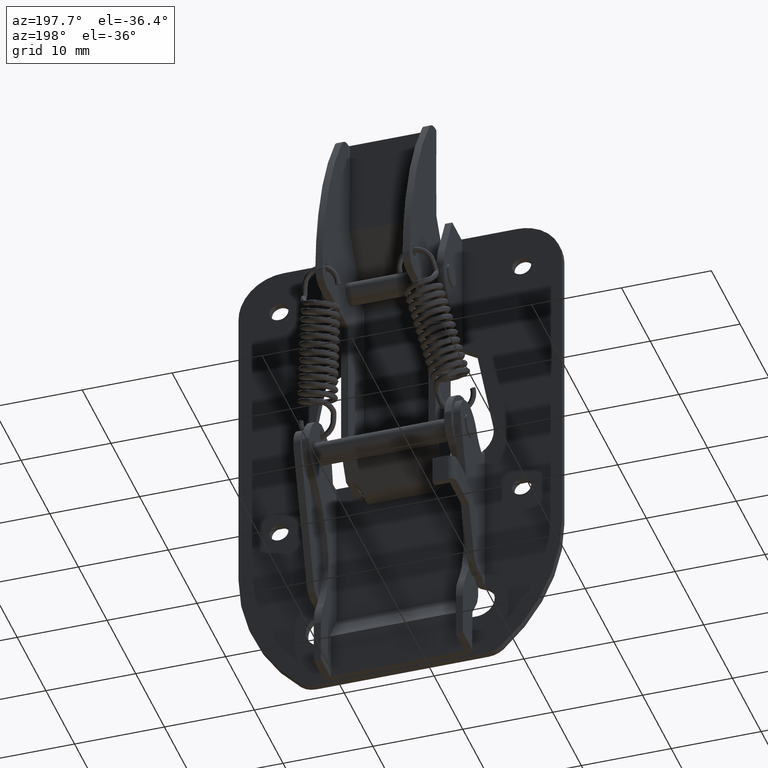
[diagram: clean part render]
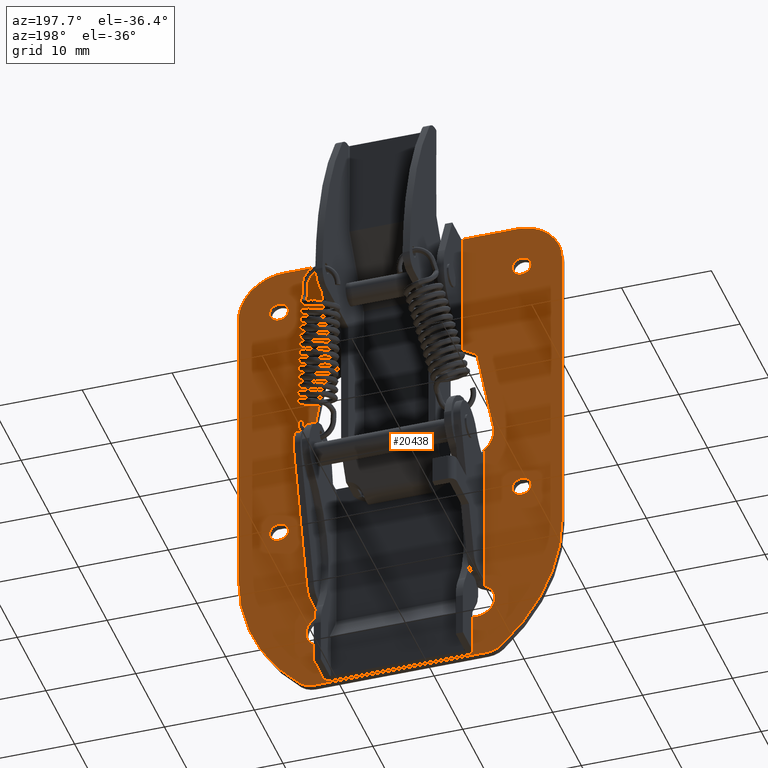
[diagram: same view with one face highlighted and labeled with its STEP entity id]
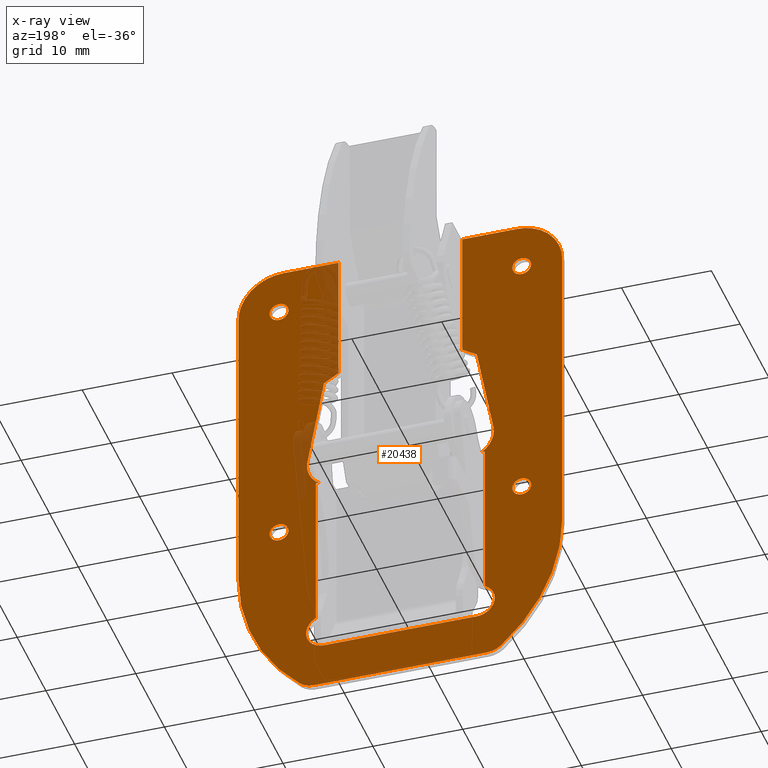
[diagram: x-ray of the same camera — body ghosted, the highlighted face saturated]
A machine part, auxiliary view. The second image highlights one B-rep face of the part: STEP entity #20438.
The next image is the same camera in x-ray: the body ghosted, the highlighted face saturated — about 7% of this face is hidden behind the body in this view.
In plain terms, the highlighted face is a freeform B-spline surface patch.
Its self-contained STEP definition (entity closure, byte-faithful):
#16515=CARTESIAN_POINT('',(0.786404222502687,0.800002999998384,0.695750241702277));
#16516=VERTEX_POINT('',#16515);
#16522=CARTESIAN_POINT('',(0.0,0.800002999998384,-1.050000000000000));
#16523=VERTEX_POINT('',#16522);
#16524=CARTESIAN_POINT('',(0.0,0.800002999998384,-1.050000000000000));
#16525=CARTESIAN_POINT('',(1.050000000000000,0.800002999998384,-1.050000000000000));
#16526=CARTESIAN_POINT('',(1.050000000000000,0.800002999998384,0.0));
#16527=CARTESIAN_POINT('',(1.050000000000000,0.800002999998384,0.397808796579667));
#16528=CARTESIAN_POINT('',(0.786404222502687,0.800002999998384,0.695750241702277));
#16536=(BOUNDED_CURVE()B_SPLINE_CURVE(2,(#16524,#16525,#16526,#16527,#16528),.UNSPECIFIED.,.F.,.U.)B_SPLINE_CURVE_WITH_KNOTS((3,2,3),(0.500000000000000,0.750000000000000,0.865779732705393),.UNSPECIFIED.)CURVE()GEOMETRIC_REPRESENTATION_ITEM()RATIONAL_B_SPLINE_CURVE((1.0,0.707106781186548,1.0,0.864355605658225,0.854350185075455))REPRESENTATION_ITEM(''));
#16537=EDGE_CURVE('',#16523,#16516,#16536,.T.);
#16539=CARTESIAN_POINT('',(-0.649636010246157,0.800002999998384,0.824907906491055));
#16540=VERTEX_POINT('',#16539);
#16541=CARTESIAN_POINT('',(-0.649636010246157,0.800002999998384,0.824907906491055));
#16542=CARTESIAN_POINT('',(-1.050000000000000,0.800002999998384,0.509611055891058));
#16543=CARTESIAN_POINT('',(-1.050000000000000,0.800002999998384,0.0));
#16544=CARTESIAN_POINT('',(-1.050000000000000,0.800002999998384,-1.050000000000000));
#16545=CARTESIAN_POINT('',(0.0,0.800002999998384,-1.050000000000000));
#16553=(BOUNDED_CURVE()B_SPLINE_CURVE(2,(#16541,#16542,#16543,#16544,#16545),.UNSPECIFIED.,.F.,.U.)B_SPLINE_CURVE_WITH_KNOTS((3,2,3),(0.107127540890583,0.250000000000000,0.500000000000000),.UNSPECIFIED.)CURVE()GEOMETRIC_REPRESENTATION_ITEM()RATIONAL_B_SPLINE_CURVE((0.856547225993736,0.832614502286598,1.0,0.707106781186548,1.0))REPRESENTATION_ITEM(''));
#16554=EDGE_CURVE('',#16540,#16523,#16553,.T.);
#16598=CARTESIAN_POINT('',(0.0,0.800002999998384,1.050000000000000));
#16599=VERTEX_POINT('',#16598);
#16600=CARTESIAN_POINT('',(0.0,0.800002999998384,1.050000000000000));
#16601=CARTESIAN_POINT('',(-0.363814035025681,0.800002999998384,1.050000000000000));
#16602=CARTESIAN_POINT('',(-0.649636010246157,0.800002999998384,0.824907906491055));
#16610=(BOUNDED_CURVE()B_SPLINE_CURVE(2,(#16600,#16601,#16602),.UNSPECIFIED.,.F.,.U.)B_SPLINE_CURVE_WITH_KNOTS((3,3),(0.0,0.107127540890583),.UNSPECIFIED.)CURVE()GEOMETRIC_REPRESENTATION_ITEM()RATIONAL_B_SPLINE_CURVE((1.0,0.874492278899950,0.856547225993736))REPRESENTATION_ITEM(''));
#16611=EDGE_CURVE('',#16599,#16540,#16610,.T.);
#16613=CARTESIAN_POINT('',(0.786404222502687,0.800002999998384,0.695750241702277));
#16614=CARTESIAN_POINT('',(0.472991160993867,0.800002999998384,1.050000000000000));
#16615=CARTESIAN_POINT('',(0.0,0.800002999998384,1.050000000000000));
#16623=(BOUNDED_CURVE()B_SPLINE_CURVE(2,(#16613,#16614,#16615),.UNSPECIFIED.,.F.,.U.)B_SPLINE_CURVE_WITH_KNOTS((3,3),(0.865779732705393,1.0),.UNSPECIFIED.)CURVE()GEOMETRIC_REPRESENTATION_ITEM()RATIONAL_B_SPLINE_CURVE((0.854350185075455,0.842751175528323,1.0))REPRESENTATION_ITEM(''));
#16624=EDGE_CURVE('',#16516,#16599,#16623,.T.);
#16705=CARTESIAN_POINT('',(0.786404222502686,0.800002999998384,-28.304249758297718));
#16706=VERTEX_POINT('',#16705);
#16712=CARTESIAN_POINT('',(0.0,0.800002999998384,-30.050000000000001));
#16713=VERTEX_POINT('',#16712);
#16714=CARTESIAN_POINT('',(0.0,0.800002999998384,-30.050000000000001));
#16715=CARTESIAN_POINT('',(1.050000000000000,0.800002999998384,-30.049999999999990));
#16716=CARTESIAN_POINT('',(1.050000000000000,0.800002999998384,-29.0));
#16717=CARTESIAN_POINT('',(1.050000000000000,0.800002999998384,-28.602191203420336));
#16718=CARTESIAN_POINT('',(0.786404222502686,0.800002999998384,-28.304249758297725));
#16726=(BOUNDED_CURVE()B_SPLINE_CURVE(2,(#16714,#16715,#16716,#16717,#16718),.UNSPECIFIED.,.F.,.U.)B_SPLINE_CURVE_WITH_KNOTS((3,2,3),(0.500000000000000,0.750000000000000,0.865779732705393),.UNSPECIFIED.)CURVE()GEOMETRIC_REPRESENTATION_ITEM()RATIONAL_B_SPLINE_CURVE((1.0,0.707106781186548,1.0,0.864355605658225,0.854350185075455))REPRESENTATION_ITEM(''));
#16727=EDGE_CURVE('',#16713,#16706,#16726,.T.);
#16729=CARTESIAN_POINT('',(-0.649636010246156,0.800002999998384,-28.175092093508940));
#16730=VERTEX_POINT('',#16729);
#16731=CARTESIAN_POINT('',(-0.649636010246156,0.800002999998384,-28.175092093508944));
#16732=CARTESIAN_POINT('',(-1.050000000000000,0.800002999998384,-28.490388944108936));
#16733=CARTESIAN_POINT('',(-1.050000000000000,0.800002999998384,-29.0));
#16734=CARTESIAN_POINT('',(-1.050000000000000,0.800002999998384,-30.049999999999990));
#16735=CARTESIAN_POINT('',(0.0,0.800002999998384,-30.050000000000001));
#16743=(BOUNDED_CURVE()B_SPLINE_CURVE(2,(#16731,#16732,#16733,#16734,#16735),.UNSPECIFIED.,.F.,.U.)B_SPLINE_CURVE_WITH_KNOTS((3,2,3),(0.107127540890583,0.250000000000000,0.500000000000000),.UNSPECIFIED.)CURVE()GEOMETRIC_REPRESENTATION_ITEM()RATIONAL_B_SPLINE_CURVE((0.856547225993736,0.832614502286597,1.0,0.707106781186548,1.0))REPRESENTATION_ITEM(''));
#16744=EDGE_CURVE('',#16730,#16713,#16743,.T.);
#16788=CARTESIAN_POINT('',(0.0,0.800002999998384,-27.949999999999999));
#16789=VERTEX_POINT('',#16788);
#16790=CARTESIAN_POINT('',(0.0,0.800002999998384,-27.949999999999999));
#16791=CARTESIAN_POINT('',(-0.363814035025681,0.800002999998384,-27.950000000000003));
#16792=CARTESIAN_POINT('',(-0.649636010246156,0.800002999998384,-28.175092093508944));
#16800=(BOUNDED_CURVE()B_SPLINE_CURVE(2,(#16790,#16791,#16792),.UNSPECIFIED.,.F.,.U.)B_SPLINE_CURVE_WITH_KNOTS((3,3),(0.0,0.107127540890583),.UNSPECIFIED.)CURVE()GEOMETRIC_REPRESENTATION_ITEM()RATIONAL_B_SPLINE_CURVE((1.0,0.874492278899950,0.856547225993736))REPRESENTATION_ITEM(''));
#16801=EDGE_CURVE('',#16789,#16730,#16800,.T.);
#16803=CARTESIAN_POINT('',(0.786404222502686,0.800002999998384,-28.304249758297725));
#16804=CARTESIAN_POINT('',(0.472991160993867,0.800002999998384,-27.950000000000003));
#16805=CARTESIAN_POINT('',(0.0,0.800002999998384,-27.949999999999999));
#16813=(BOUNDED_CURVE()B_SPLINE_CURVE(2,(#16803,#16804,#16805),.UNSPECIFIED.,.F.,.U.)B_SPLINE_CURVE_WITH_KNOTS((3,3),(0.865779732705393,1.0),.UNSPECIFIED.)CURVE()GEOMETRIC_REPRESENTATION_ITEM()RATIONAL_B_SPLINE_CURVE((0.854350185075455,0.842751175528323,1.0))REPRESENTATION_ITEM(''));
#16814=EDGE_CURVE('',#16706,#16789,#16813,.T.);
#16895=CARTESIAN_POINT('',(27.786404222502689,0.800002999998384,-28.304249758297729));
#16896=VERTEX_POINT('',#16895);
#16902=CARTESIAN_POINT('',(27.0,0.800002999998384,-30.050000000000001));
#16903=VERTEX_POINT('',#16902);
#16904=CARTESIAN_POINT('',(27.0,0.800002999998384,-30.050000000000001));
#16905=CARTESIAN_POINT('',(28.050000000000001,0.800002999998384,-30.049999999999990));
#16906=CARTESIAN_POINT('',(28.050000000000001,0.800002999998384,-29.0));
#16907=CARTESIAN_POINT('',(28.049999999999997,0.800002999998384,-28.602191203420347));
#16908=CARTESIAN_POINT('',(27.786404222502693,0.800002999998384,-28.304249758297718));
#16916=(BOUNDED_CURVE()B_SPLINE_CURVE(2,(#16904,#16905,#16906,#16907,#16908),.UNSPECIFIED.,.F.,.U.)B_SPLINE_CURVE_WITH_KNOTS((3,2,3),(0.500000000000000,0.750000000000000,0.865779732705392),.UNSPECIFIED.)CURVE()GEOMETRIC_REPRESENTATION_ITEM()RATIONAL_B_SPLINE_CURVE((1.0,0.707106781186548,1.0,0.864355605658226,0.854350185075455))REPRESENTATION_ITEM(''));
#16917=EDGE_CURVE('',#16903,#16896,#16916,.T.);
#16919=CARTESIAN_POINT('',(26.350363989753841,0.800002999998384,-28.175092093508940));
#16920=VERTEX_POINT('',#16919);
#16921=CARTESIAN_POINT('',(26.350363989753845,0.800002999998384,-28.175092093508944));
#16922=CARTESIAN_POINT('',(25.950000000000003,0.800002999998384,-28.490388944108943));
#16923=CARTESIAN_POINT('',(25.949999999999999,0.800002999998384,-29.0));
#16924=CARTESIAN_POINT('',(25.949999999999999,0.800002999998384,-30.049999999999990));
#16925=CARTESIAN_POINT('',(27.0,0.800002999998384,-30.050000000000001));
#16933=(BOUNDED_CURVE()B_SPLINE_CURVE(2,(#16921,#16922,#16923,#16924,#16925),.UNSPECIFIED.,.F.,.U.)B_SPLINE_CURVE_WITH_KNOTS((3,2,3),(0.107127540890583,0.250000000000000,0.500000000000000),.UNSPECIFIED.)CURVE()GEOMETRIC_REPRESENTATION_ITEM()RATIONAL_B_SPLINE_CURVE((0.856547225993736,0.832614502286598,1.0,0.707106781186548,1.0))REPRESENTATION_ITEM(''));
#16934=EDGE_CURVE('',#16920,#16903,#16933,.T.);
#16978=CARTESIAN_POINT('',(27.0,0.800002999998384,-27.949999999999999));
#16979=VERTEX_POINT('',#16978);
#16980=CARTESIAN_POINT('',(27.0,0.800002999998384,-27.949999999999999));
#16981=CARTESIAN_POINT('',(26.636185964974324,0.800002999998384,-27.950000000000006));
#16982=CARTESIAN_POINT('',(26.350363989753845,0.800002999998384,-28.175092093508944));
#16990=(BOUNDED_CURVE()B_SPLINE_CURVE(2,(#16980,#16981,#16982),.UNSPECIFIED.,.F.,.U.)B_SPLINE_CURVE_WITH_KNOTS((3,3),(0.0,0.107127540890583),.UNSPECIFIED.)CURVE()GEOMETRIC_REPRESENTATION_ITEM()RATIONAL_B_SPLINE_CURVE((1.0,0.874492278899950,0.856547225993736))REPRESENTATION_ITEM(''));
#16991=EDGE_CURVE('',#16979,#16920,#16990,.T.);
#16993=CARTESIAN_POINT('',(27.786404222502693,0.800002999998384,-28.304249758297718));
#16994=CARTESIAN_POINT('',(27.472991160993868,0.800002999998384,-27.950000000000003));
#16995=CARTESIAN_POINT('',(27.0,0.800002999998384,-27.949999999999999));
#17003=(BOUNDED_CURVE()B_SPLINE_CURVE(2,(#16993,#16994,#16995),.UNSPECIFIED.,.F.,.U.)B_SPLINE_CURVE_WITH_KNOTS((3,3),(0.865779732705392,1.0),.UNSPECIFIED.)CURVE()GEOMETRIC_REPRESENTATION_ITEM()RATIONAL_B_SPLINE_CURVE((0.854350185075455,0.842751175528321,1.0))REPRESENTATION_ITEM(''));
#17004=EDGE_CURVE('',#16896,#16979,#17003,.T.);
#17085=CARTESIAN_POINT('',(27.786404222502689,0.800002999998384,0.695750241702275));
#17086=VERTEX_POINT('',#17085);
#17092=CARTESIAN_POINT('',(27.0,0.800002999998384,-1.050000000000000));
#17093=VERTEX_POINT('',#17092);
#17094=CARTESIAN_POINT('',(27.0,0.800002999998384,-1.050000000000000));
#17095=CARTESIAN_POINT('',(28.050000000000001,0.800002999998384,-1.050000000000000));
#17096=CARTESIAN_POINT('',(28.050000000000001,0.800002999998384,0.0));
#17097=CARTESIAN_POINT('',(28.049999999999997,0.800002999998384,0.397808796579664));
#17098=CARTESIAN_POINT('',(27.786404222502693,0.800002999998384,0.695750241702275));
#17106=(BOUNDED_CURVE()B_SPLINE_CURVE(2,(#17094,#17095,#17096,#17097,#17098),.UNSPECIFIED.,.F.,.U.)B_SPLINE_CURVE_WITH_KNOTS((3,2,3),(0.500000000000000,0.750000000000000,0.865779732705393),.UNSPECIFIED.)CURVE()GEOMETRIC_REPRESENTATION_ITEM()RATIONAL_B_SPLINE_CURVE((1.0,0.707106781186548,1.0,0.864355605658226,0.854350185075455))REPRESENTATION_ITEM(''));
#17107=EDGE_CURVE('',#17093,#17086,#17106,.T.);
#17109=CARTESIAN_POINT('',(26.350363989753848,0.800002999998384,0.824907906491054));
#17110=VERTEX_POINT('',#17109);
#17111=CARTESIAN_POINT('',(26.350363989753848,0.800002999998384,0.824907906491054));
#17112=CARTESIAN_POINT('',(25.950000000000003,0.800002999998384,0.509611055891056));
#17113=CARTESIAN_POINT('',(25.949999999999999,0.800002999998384,0.0));
#17114=CARTESIAN_POINT('',(25.949999999999999,0.800002999998384,-1.050000000000000));
#17115=CARTESIAN_POINT('',(27.0,0.800002999998384,-1.050000000000000));
#17123=(BOUNDED_CURVE()B_SPLINE_CURVE(2,(#17111,#17112,#17113,#17114,#17115),.UNSPECIFIED.,.F.,.U.)B_SPLINE_CURVE_WITH_KNOTS((3,2,3),(0.107127540890583,0.250000000000000,0.500000000000000),.UNSPECIFIED.)CURVE()GEOMETRIC_REPRESENTATION_ITEM()RATIONAL_B_SPLINE_CURVE((0.856547225993736,0.832614502286598,1.0,0.707106781186548,1.0))REPRESENTATION_ITEM(''));
#17124=EDGE_CURVE('',#17110,#17093,#17123,.T.);
#17168=CARTESIAN_POINT('',(27.0,0.800002999998384,1.050000000000000));
#17169=VERTEX_POINT('',#17168);
#17170=CARTESIAN_POINT('',(27.0,0.800002999998384,1.050000000000000));
#17171=CARTESIAN_POINT('',(26.636185964974313,0.800002999998384,1.050000000000000));
#17172=CARTESIAN_POINT('',(26.350363989753848,0.800002999998384,0.824907906491054));
#17180=(BOUNDED_CURVE()B_SPLINE_CURVE(2,(#17170,#17171,#17172),.UNSPECIFIED.,.F.,.U.)B_SPLINE_CURVE_WITH_KNOTS((3,3),(0.0,0.107127540890583),.UNSPECIFIED.)CURVE()GEOMETRIC_REPRESENTATION_ITEM()RATIONAL_B_SPLINE_CURVE((1.0,0.874492278899950,0.856547225993736))REPRESENTATION_ITEM(''));
#17181=EDGE_CURVE('',#17169,#17110,#17180,.T.);
#17183=CARTESIAN_POINT('',(27.786404222502693,0.800002999998384,0.695750241702275));
#17184=CARTESIAN_POINT('',(27.472991160993864,0.800002999998384,1.050000000000000));
#17185=CARTESIAN_POINT('',(27.0,0.800002999998384,1.050000000000000));
#17193=(BOUNDED_CURVE()B_SPLINE_CURVE(2,(#17183,#17184,#17185),.UNSPECIFIED.,.F.,.U.)B_SPLINE_CURVE_WITH_KNOTS((3,3),(0.865779732705393,1.0),.UNSPECIFIED.)CURVE()GEOMETRIC_REPRESENTATION_ITEM()RATIONAL_B_SPLINE_CURVE((0.854350185075455,0.842751175528322,1.0))REPRESENTATION_ITEM(''));
#17194=EDGE_CURVE('',#17086,#17169,#17193,.T.);
#17440=CARTESIAN_POINT('',(20.399999999999999,0.800002999999919,5.0));
#17441=VERTEX_POINT('',#17440);
#17457=CARTESIAN_POINT('',(20.399999999999999,0.800002999999919,-9.458246871493188));
#17458=VERTEX_POINT('',#17457);
#17459=CARTESIAN_POINT('',(20.399999999999999,0.800002999999919,-9.458246871493188));
#17460=CARTESIAN_POINT('',(20.399999999999999,0.800002999999919,5.0));
#17461=QUASI_UNIFORM_CURVE('',1,(#17459,#17460),.UNSPECIFIED.,.F.,.U.);
#17462=EDGE_CURVE('',#17458,#17441,#17461,.T.);
#17517=CARTESIAN_POINT('',(20.263789242413900,0.800002999999919,-9.458246871493188));
#17518=VERTEX_POINT('',#17517);
#17519=CARTESIAN_POINT('',(20.263789242413900,0.800002999999919,-9.458246871493188));
#17520=CARTESIAN_POINT('',(20.399999999999999,0.800002999999919,-9.458246871493188));
#17521=QUASI_UNIFORM_CURVE('',1,(#17519,#17520),.UNSPECIFIED.,.F.,.U.);
#17522=EDGE_CURVE('',#17518,#17458,#17521,.T.);
#17879=CARTESIAN_POINT('',(22.579801983134750,0.800002999999938,-23.481167058830849));
#17880=VERTEX_POINT('',#17879);
#17890=CARTESIAN_POINT('',(22.899999999999999,0.800002999999919,-23.481167058830849));
#17891=VERTEX_POINT('',#17890);
#17892=CARTESIAN_POINT('',(22.899999999999999,0.800002999999919,-23.481167058830849));
#17893=CARTESIAN_POINT('',(22.579801983134750,0.800002999999938,-23.481167058830849));
#17894=QUASI_UNIFORM_CURVE('',1,(#17892,#17893),.UNSPECIFIED.,.F.,.U.);
#17895=EDGE_CURVE('',#17891,#17880,#17894,.T.);
#17927=CARTESIAN_POINT('',(22.899999999999999,0.800002999999919,-41.200000000000003));
#17928=VERTEX_POINT('',#17927);
#17944=CARTESIAN_POINT('',(22.871779788708150,0.800002999999938,-41.200000000000003));
#17945=VERTEX_POINT('',#17944);
#17946=CARTESIAN_POINT('',(22.871779788708150,0.800002999999938,-41.200000000000003));
#17947=CARTESIAN_POINT('',(22.899999999999999,0.800002999999919,-41.200000000000003));
#17948=QUASI_UNIFORM_CURVE('',1,(#17946,#17947),.UNSPECIFIED.,.F.,.U.);
#17949=EDGE_CURVE('',#17945,#17928,#17948,.T.);
#18018=CARTESIAN_POINT('',(22.899999999999999,0.800002999999919,-41.200000000000003));
#18019=CARTESIAN_POINT('',(22.899999999999999,0.800002999999919,-23.481167058830849));
#18020=QUASI_UNIFORM_CURVE('',1,(#18018,#18019),.UNSPECIFIED.,.F.,.U.);
#18021=EDGE_CURVE('',#17928,#17891,#18020,.T.);
#18369=CARTESIAN_POINT('',(6.600000000000000,0.800002999999919,5.0));
#18370=VERTEX_POINT('',#18369);
#18391=CARTESIAN_POINT('',(6.600000000000000,0.800002999999919,-9.458272528600469));
#18392=VERTEX_POINT('',#18391);
#18406=CARTESIAN_POINT('',(6.600000000000000,0.800002999999919,5.0));
#18407=CARTESIAN_POINT('',(6.600000000000000,0.800002999999919,-9.458272528600469));
#18408=QUASI_UNIFORM_CURVE('',1,(#18406,#18407),.UNSPECIFIED.,.F.,.U.);
#18409=EDGE_CURVE('',#18370,#18392,#18408,.T.);
#18471=CARTESIAN_POINT('',(6.736255999370711,0.800002999999919,-9.458272528600469));
#18472=VERTEX_POINT('',#18471);
#18486=CARTESIAN_POINT('',(6.600000000000000,0.800002999999919,-9.458272528600469));
#18487=CARTESIAN_POINT('',(6.736255999370711,0.800002999999919,-9.458272528600469));
#18488=QUASI_UNIFORM_CURVE('',1,(#18486,#18487),.UNSPECIFIED.,.F.,.U.);
#18489=EDGE_CURVE('',#18392,#18472,#18488,.T.);
#18629=CARTESIAN_POINT('',(4.100000000000001,0.800002999999919,-23.481167058830849));
#18630=VERTEX_POINT('',#18629);
#18646=CARTESIAN_POINT('',(4.420199114503245,0.800002999999938,-23.481167058830849));
#18647=VERTEX_POINT('',#18646);
#18648=CARTESIAN_POINT('',(4.420199114503245,0.800002999999938,-23.481167058830849));
#18649=CARTESIAN_POINT('',(4.100000000000001,0.800002999999919,-23.481167058830849));
#18650=QUASI_UNIFORM_CURVE('',1,(#18648,#18649),.UNSPECIFIED.,.F.,.U.);
#18651=EDGE_CURVE('',#18647,#18630,#18650,.T.);
#18757=CARTESIAN_POINT('',(4.128220211291874,0.800002999999938,-41.200000000000003));
#18758=VERTEX_POINT('',#18757);
#18772=CARTESIAN_POINT('',(4.100000000000001,0.800002999999919,-41.200000000000003));
#18773=VERTEX_POINT('',#18772);
#18774=CARTESIAN_POINT('',(4.100000000000001,0.800002999999919,-41.200000000000003));
#18775=CARTESIAN_POINT('',(4.128220211291874,0.800002999999938,-41.200000000000003));
#18776=QUASI_UNIFORM_CURVE('',1,(#18774,#18775),.UNSPECIFIED.,.F.,.U.);
#18777=EDGE_CURVE('',#18773,#18758,#18776,.T.);
#18809=CARTESIAN_POINT('',(4.100000000000001,0.800002999999919,-23.481167058830849));
#18810=CARTESIAN_POINT('',(4.100000000000001,0.800002999999919,-41.200000000000003));
#18811=QUASI_UNIFORM_CURVE('',1,(#18809,#18810),.UNSPECIFIED.,.F.,.U.);
#18812=EDGE_CURVE('',#18630,#18773,#18811,.T.);
#19409=CARTESIAN_POINT('',(5.0,0.800002999999919,-45.0));
#19410=VERTEX_POINT('',#19409);
#19411=CARTESIAN_POINT('',(4.128220211291871,0.800002999999938,-41.200000000000003));
#19412=CARTESIAN_POINT('',(2.694407498505600,0.800002999999938,-41.894427190999927));
#19413=CARTESIAN_POINT('',(3.050641131038207,0.800002999999938,-43.447213595499953));
#19414=CARTESIAN_POINT('',(3.406874763570813,0.800002999999938,-45.0));
#19415=CARTESIAN_POINT('',(5.0,0.800002999999938,-45.0));
#19423=(BOUNDED_CURVE()B_SPLINE_CURVE(2,(#19411,#19412,#19413,#19414,#19415),.UNSPECIFIED.,.F.,.U.)B_SPLINE_CURVE_WITH_KNOTS((3,2,3),(0.0,0.500000000000000,1.0),.UNSPECIFIED.)CURVE()GEOMETRIC_REPRESENTATION_ITEM()RATIONAL_B_SPLINE_CURVE((1.0,0.782178623381506,1.0,0.782178623381506,1.0))REPRESENTATION_ITEM(''));
#19424=EDGE_CURVE('',#18758,#19410,#19423,.T.);
#19500=CARTESIAN_POINT('',(22.0,0.800002999999919,-45.0));
#19501=VERTEX_POINT('',#19500);
#19502=CARTESIAN_POINT('',(22.0,0.800002999999938,-45.0));
#19503=CARTESIAN_POINT('',(23.593125236429170,0.800002999999938,-45.0));
#19504=CARTESIAN_POINT('',(23.949358868961792,0.800002999999938,-43.447213595499967));
#19505=CARTESIAN_POINT('',(24.305592501494402,0.800002999999938,-41.894427190999934));
#19506=CARTESIAN_POINT('',(22.871779788708150,0.800002999999938,-41.200000000000003));
#19514=(BOUNDED_CURVE()B_SPLINE_CURVE(2,(#19502,#19503,#19504,#19505,#19506),.UNSPECIFIED.,.F.,.U.)B_SPLINE_CURVE_WITH_KNOTS((3,2,3),(0.0,0.500000000000000,1.0),.UNSPECIFIED.)CURVE()GEOMETRIC_REPRESENTATION_ITEM()RATIONAL_B_SPLINE_CURVE((1.0,0.782178623381509,1.0,0.782178623381509,1.0))REPRESENTATION_ITEM(''));
#19515=EDGE_CURVE('',#19501,#17945,#19514,.T.);
#19539=CARTESIAN_POINT('',(-4.500000000000000,0.800002999999919,0.0));
#19540=VERTEX_POINT('',#19539);
#19541=CARTESIAN_POINT('',(0.500000000000000,0.800002999999919,5.0));
#19542=VERTEX_POINT('',#19541);
#19543=CARTESIAN_POINT('',(-4.500000000000000,0.800002999999919,0.0));
#19544=CARTESIAN_POINT('',(-4.500000000000002,0.800002999999938,5.000000000000001));
#19545=CARTESIAN_POINT('',(0.500000000000000,0.800002999999919,5.0));
#19553=(BOUNDED_CURVE()B_SPLINE_CURVE(2,(#19543,#19544,#19545),.UNSPECIFIED.,.F.,.U.)CURVE()GEOMETRIC_REPRESENTATION_ITEM()QUASI_UNIFORM_CURVE()RATIONAL_B_SPLINE_CURVE((1.0,0.707106781186548,1.0))REPRESENTATION_ITEM(''));
#19554=EDGE_CURVE('',#19540,#19542,#19553,.T.);
#19600=CARTESIAN_POINT('',(26.500000000000000,0.800002999999919,5.0));
#19601=VERTEX_POINT('',#19600);
#19602=CARTESIAN_POINT('',(31.500000000000000,0.800002999999919,0.0));
#19603=VERTEX_POINT('',#19602);
#19604=CARTESIAN_POINT('',(26.500000000000000,0.800002999999938,5.0));
#19605=CARTESIAN_POINT('',(31.500000000000000,0.800002999999938,5.000000000000001));
#19606=CARTESIAN_POINT('',(31.500000000000000,0.800002999999938,0.0));
#19614=(BOUNDED_CURVE()B_SPLINE_CURVE(2,(#19604,#19605,#19606),.UNSPECIFIED.,.F.,.U.)CURVE()GEOMETRIC_REPRESENTATION_ITEM()QUASI_UNIFORM_CURVE()RATIONAL_B_SPLINE_CURVE((1.0,0.707106781186548,1.0))REPRESENTATION_ITEM(''));
#19615=EDGE_CURVE('',#19601,#19603,#19614,.T.);
#19850=CARTESIAN_POINT('',(23.089325000000098,0.800002999999938,-50.0));
#19851=VERTEX_POINT('',#19850);
#19857=CARTESIAN_POINT('',(24.744942965445500,0.800002999999938,-49.373213589662001));
#19858=VERTEX_POINT('',#19857);
#19859=CARTESIAN_POINT('',(23.089325000000098,0.800002999999938,-50.0));
#19860=CARTESIAN_POINT('',(24.035778867105503,0.800002999999938,-50.0));
#19861=CARTESIAN_POINT('',(24.744942965445510,0.800002999999938,-49.373213589662008));
#19869=(BOUNDED_CURVE()B_SPLINE_CURVE(2,(#19859,#19860,#19861),.UNSPECIFIED.,.F.,.U.)CURVE()GEOMETRIC_REPRESENTATION_ITEM()QUASI_UNIFORM_CURVE()RATIONAL_B_SPLINE_CURVE((1.0,0.935223351896434,1.0))REPRESENTATION_ITEM(''));
#19870=EDGE_CURVE('',#19851,#19858,#19869,.T.);
#19886=CARTESIAN_POINT('',(3.910674869100386,0.800002999999938,-50.0));
#19887=VERTEX_POINT('',#19886);
#19893=CARTESIAN_POINT('',(3.910674869100386,0.800002999999938,-50.0));
#19894=CARTESIAN_POINT('',(23.089325000000098,0.800002999999938,-50.0));
#19895=QUASI_UNIFORM_CURVE('',1,(#19893,#19894),.UNSPECIFIED.,.F.,.U.);
#19896=EDGE_CURVE('',#19887,#19851,#19895,.T.);
#19917=CARTESIAN_POINT('',(2.255054968686985,0.800002999999938,-49.373219561456700));
#19918=VERTEX_POINT('',#19917);
#19924=CARTESIAN_POINT('',(2.255054968686985,0.800002999999938,-49.373219561456700));
#19925=CARTESIAN_POINT('',(2.964220518091436,0.800002999999938,-50.000002139368881));
#19926=CARTESIAN_POINT('',(3.910674869100386,0.800002999999938,-50.0));
#19934=(BOUNDED_CURVE()B_SPLINE_CURVE(2,(#19924,#19925,#19926),.UNSPECIFIED.,.F.,.U.)CURVE()GEOMETRIC_REPRESENTATION_ITEM()QUASI_UNIFORM_CURVE()RATIONAL_B_SPLINE_CURVE((1.0,0.935223531600286,1.0))REPRESENTATION_ITEM(''));
#19935=EDGE_CURVE('',#19918,#19887,#19934,.T.);
#19956=CARTESIAN_POINT('',(-4.500000000000000,0.800002999999938,-34.387512000000100));
#19957=VERTEX_POINT('',#19956);
#19963=CARTESIAN_POINT('',(-4.500000000000001,0.800002999999938,-34.387512000000100));
#19964=CARTESIAN_POINT('',(-4.500000000000001,0.800002999999938,-43.402842028274620));
#19965=CARTESIAN_POINT('',(2.255054968686998,0.800002999999938,-49.373219561456679));
#19973=(BOUNDED_CURVE()B_SPLINE_CURVE(2,(#19963,#19964,#19965),.UNSPECIFIED.,.F.,.U.)CURVE()GEOMETRIC_REPRESENTATION_ITEM()QUASI_UNIFORM_CURVE()RATIONAL_B_SPLINE_CURVE((1.0,0.911659819111726,1.0))REPRESENTATION_ITEM(''));
#19974=EDGE_CURVE('',#19957,#19918,#19973,.T.);
#19987=CARTESIAN_POINT('',(-4.500000000000000,0.800002999999919,0.0));
#19988=CARTESIAN_POINT('',(-4.500000000000000,0.800002999999938,-34.387512000000100));
#19989=QUASI_UNIFORM_CURVE('',1,(#19987,#19988),.UNSPECIFIED.,.F.,.U.);
#19990=EDGE_CURVE('',#19540,#19957,#19989,.T.);
#20011=CARTESIAN_POINT('',(6.600000000000000,0.800002999999919,5.0));
#20012=CARTESIAN_POINT('',(0.500000000000000,0.800002999999919,5.0));
#20013=QUASI_UNIFORM_CURVE('',1,(#20011,#20012),.UNSPECIFIED.,.F.,.U.);
#20014=EDGE_CURVE('',#18370,#19542,#20013,.T.);
#20048=CARTESIAN_POINT('',(5.0,0.800002999999938,-10.500014999999900));
#20049=VERTEX_POINT('',#20048);
#20055=CARTESIAN_POINT('',(5.0,0.800002999999938,-10.500014999999900));
#20056=CARTESIAN_POINT('',(6.736255999370711,0.800002999999919,-9.458272528600469));
#20057=QUASI_UNIFORM_CURVE('',1,(#20055,#20056),.UNSPECIFIED.,.F.,.U.);
#20058=EDGE_CURVE('',#20049,#18472,#20057,.T.);
#20070=CARTESIAN_POINT('',(3.156708000000095,0.800002999999938,-20.453734999999899));
#20071=VERTEX_POINT('',#20070);
#20077=CARTESIAN_POINT('',(3.156708000000095,0.800002999999938,-20.453734999999899));
#20078=CARTESIAN_POINT('',(5.0,0.800002999999938,-10.500014999999900));
#20079=QUASI_UNIFORM_CURVE('',1,(#20077,#20078),.UNSPECIFIED.,.F.,.U.);
#20080=EDGE_CURVE('',#20071,#20049,#20079,.T.);
#20108=CARTESIAN_POINT('',(3.156708000000090,0.800002999999938,-20.453734999999899));
#20109=CARTESIAN_POINT('',(2.799993494618011,0.800002999999938,-22.379982337107595));
#20110=CARTESIAN_POINT('',(4.420199114503260,0.800002999999938,-23.481167058830831));
#20118=(BOUNDED_CURVE()B_SPLINE_CURVE(2,(#20108,#20109,#20110),.UNSPECIFIED.,.F.,.U.)CURVE()GEOMETRIC_REPRESENTATION_ITEM()QUASI_UNIFORM_CURVE()RATIONAL_B_SPLINE_CURVE((1.0,0.837293087347709,1.0))REPRESENTATION_ITEM(''));
#20119=EDGE_CURVE('',#20071,#18647,#20118,.T.);
#20160=CARTESIAN_POINT('',(22.0,0.800002999999919,-45.0));
#20161=CARTESIAN_POINT('',(5.0,0.800002999999919,-45.0));
#20162=QUASI_UNIFORM_CURVE('',1,(#20160,#20161),.UNSPECIFIED.,.F.,.U.);
#20163=EDGE_CURVE('',#19501,#19410,#20162,.T.);
#20211=CARTESIAN_POINT('',(23.843292999999949,0.800002999999938,-20.453734999999899));
#20212=VERTEX_POINT('',#20211);
#20213=CARTESIAN_POINT('',(22.579801983134740,0.800002999999938,-23.481167058830842));
#20214=CARTESIAN_POINT('',(24.200007704624653,0.800002999999938,-22.379982368007603));
#20215=CARTESIAN_POINT('',(23.843292999999949,0.800002999999938,-20.453734999999899));
#20223=(BOUNDED_CURVE()B_SPLINE_CURVE(2,(#20213,#20214,#20215),.UNSPECIFIED.,.F.,.U.)CURVE()GEOMETRIC_REPRESENTATION_ITEM()QUASI_UNIFORM_CURVE()RATIONAL_B_SPLINE_CURVE((1.0,0.837293049257014,1.0))REPRESENTATION_ITEM(''));
#20224=EDGE_CURVE('',#17880,#20212,#20223,.T.);
#20244=CARTESIAN_POINT('',(21.999993541613001,0.800002999999938,-10.499980124927999));
#20245=VERTEX_POINT('',#20244);
#20251=CARTESIAN_POINT('',(21.999993541613001,0.800002999999938,-10.499980124927999));
#20252=CARTESIAN_POINT('',(23.843292999999949,0.800002999999938,-20.453734999999899));
#20253=QUASI_UNIFORM_CURVE('',1,(#20251,#20252),.UNSPECIFIED.,.F.,.U.);
#20254=EDGE_CURVE('',#20245,#20212,#20253,.T.);
#20269=CARTESIAN_POINT('',(20.263789242413900,0.800002999999919,-9.458246871493188));
#20270=CARTESIAN_POINT('',(21.999993541613001,0.800002999999938,-10.499980124927999));
#20271=QUASI_UNIFORM_CURVE('',1,(#20269,#20270),.UNSPECIFIED.,.F.,.U.);
#20272=EDGE_CURVE('',#17518,#20245,#20271,.T.);
#20311=CARTESIAN_POINT('',(26.500000000000000,0.800002999999919,5.0));
#20312=CARTESIAN_POINT('',(20.399999999999999,0.800002999999919,5.0));
#20313=QUASI_UNIFORM_CURVE('',1,(#20311,#20312),.UNSPECIFIED.,.F.,.U.);
#20314=EDGE_CURVE('',#19601,#17441,#20313,.T.);
#20327=CARTESIAN_POINT('',(31.500000000000000,0.800002999999938,-34.387512000000100));
#20328=VERTEX_POINT('',#20327);
#20329=CARTESIAN_POINT('',(31.500000000000000,0.800002999999938,-34.387512000000100));
#20330=CARTESIAN_POINT('',(31.500000000000000,0.800002999999919,0.0));
#20331=QUASI_UNIFORM_CURVE('',1,(#20329,#20330),.UNSPECIFIED.,.F.,.U.);
#20332=EDGE_CURVE('',#20328,#19603,#20331,.T.);
#20360=CARTESIAN_POINT('',(24.744942965445500,0.800002999999938,-49.373213589662001));
#20361=CARTESIAN_POINT('',(31.499998065345928,0.800002999999938,-43.402838391384428));
#20362=CARTESIAN_POINT('',(31.500000000000000,0.800002999999938,-34.387512000000100));
#20370=(BOUNDED_CURVE()B_SPLINE_CURVE(2,(#20360,#20361,#20362),.UNSPECIFIED.,.F.,.U.)CURVE()GEOMETRIC_REPRESENTATION_ITEM()QUASI_UNIFORM_CURVE()RATIONAL_B_SPLINE_CURVE((1.0,0.911659843839160,1.0))REPRESENTATION_ITEM(''));
#20371=EDGE_CURVE('',#19858,#20328,#20370,.T.);
#20377=CARTESIAN_POINT('',(-6.298199930225013,0.800002999999919,7.747249893399333));
#20378=CARTESIAN_POINT('',(33.298200895820258,0.800002999999919,7.747249893399333));
#20379=CARTESIAN_POINT('',(-6.298199930225013,0.800002999999919,-52.747251368614279));
#20380=CARTESIAN_POINT('',(33.298200895820258,0.800002999999919,-52.747251368614279));
#20381=B_SPLINE_SURFACE_WITH_KNOTS('',1,1,((#20377,#20379),(#20378,#20380)),.UNSPECIFIED.,.F.,.F.,.U.,(2,2),(2,2),(0.0,39.596400826045269),(0.0,60.494501262013607),.UNSPECIFIED.);
#20382=ORIENTED_EDGE('',*,*,#17522,.T.);
#20383=ORIENTED_EDGE('',*,*,#17462,.T.);
#20384=ORIENTED_EDGE('',*,*,#20314,.F.);
#20385=ORIENTED_EDGE('',*,*,#19615,.T.);
#20386=ORIENTED_EDGE('',*,*,#20332,.F.);
#20387=ORIENTED_EDGE('',*,*,#20371,.F.);
#20388=ORIENTED_EDGE('',*,*,#19870,.F.);
#20389=ORIENTED_EDGE('',*,*,#19896,.F.);
#20390=ORIENTED_EDGE('',*,*,#19935,.F.);
#20391=ORIENTED_EDGE('',*,*,#19974,.F.);
#20392=ORIENTED_EDGE('',*,*,#19990,.F.);
#20393=ORIENTED_EDGE('',*,*,#19554,.T.);
#20394=ORIENTED_EDGE('',*,*,#20014,.F.);
#20395=ORIENTED_EDGE('',*,*,#18409,.T.);
#20396=ORIENTED_EDGE('',*,*,#18489,.T.);
#20397=ORIENTED_EDGE('',*,*,#20058,.F.);
#20398=ORIENTED_EDGE('',*,*,#20080,.F.);
#20399=ORIENTED_EDGE('',*,*,#20119,.T.);
#20400=ORIENTED_EDGE('',*,*,#18651,.T.);
#20401=ORIENTED_EDGE('',*,*,#18812,.T.);
#20402=ORIENTED_EDGE('',*,*,#18777,.T.);
#20403=ORIENTED_EDGE('',*,*,#19424,.T.);
#20404=ORIENTED_EDGE('',*,*,#20163,.F.);
#20405=ORIENTED_EDGE('',*,*,#19515,.T.);
#20406=ORIENTED_EDGE('',*,*,#17949,.T.);
#20407=ORIENTED_EDGE('',*,*,#18021,.T.);
#20408=ORIENTED_EDGE('',*,*,#17895,.T.);
#20409=ORIENTED_EDGE('',*,*,#20224,.T.);
#20410=ORIENTED_EDGE('',*,*,#20254,.F.);
#20411=ORIENTED_EDGE('',*,*,#20272,.F.);
#20412=EDGE_LOOP('',(#20382,#20383,#20384,#20385,#20386,#20387,#20388,#20389,#20390,#20391,#20392,#20393,#20394,#20395,#20396,#20397,#20398,#20399,#20400,#20401,#20402,#20403,#20404,#20405,#20406,#20407,#20408,#20409,#20410,#20411));
#20413=FACE_OUTER_BOUND('',#20412,.T.);
#20414=ORIENTED_EDGE('',*,*,#17107,.T.);
#20415=ORIENTED_EDGE('',*,*,#17194,.T.);
#20416=ORIENTED_EDGE('',*,*,#17181,.T.);
#20417=ORIENTED_EDGE('',*,*,#17124,.T.);
#20418=EDGE_LOOP('',(#20414,#20415,#20416,#20417));
#20419=FACE_BOUND('',#20418,.T.);
#20420=ORIENTED_EDGE('',*,*,#16917,.T.);
#20421=ORIENTED_EDGE('',*,*,#17004,.T.);
#20422=ORIENTED_EDGE('',*,*,#16991,.T.);
#20423=ORIENTED_EDGE('',*,*,#16934,.T.);
#20424=EDGE_LOOP('',(#20420,#20421,#20422,#20423));
#20425=FACE_BOUND('',#20424,.T.);
#20426=ORIENTED_EDGE('',*,*,#16727,.T.);
#20427=ORIENTED_EDGE('',*,*,#16814,.T.);
#20428=ORIENTED_EDGE('',*,*,#16801,.T.);
#20429=ORIENTED_EDGE('',*,*,#16744,.T.);
#20430=EDGE_LOOP('',(#20426,#20427,#20428,#20429));
#20431=FACE_BOUND('',#20430,.T.);
#20432=ORIENTED_EDGE('',*,*,#16537,.T.);
#20433=ORIENTED_EDGE('',*,*,#16624,.T.);
#20434=ORIENTED_EDGE('',*,*,#16611,.T.);
#20435=ORIENTED_EDGE('',*,*,#16554,.T.);
#20436=EDGE_LOOP('',(#20432,#20433,#20434,#20435));
#20437=FACE_BOUND('',#20436,.T.);
#20438=ADVANCED_FACE('',(#20413,#20419,#20425,#20431,#20437),#20381,.T.);